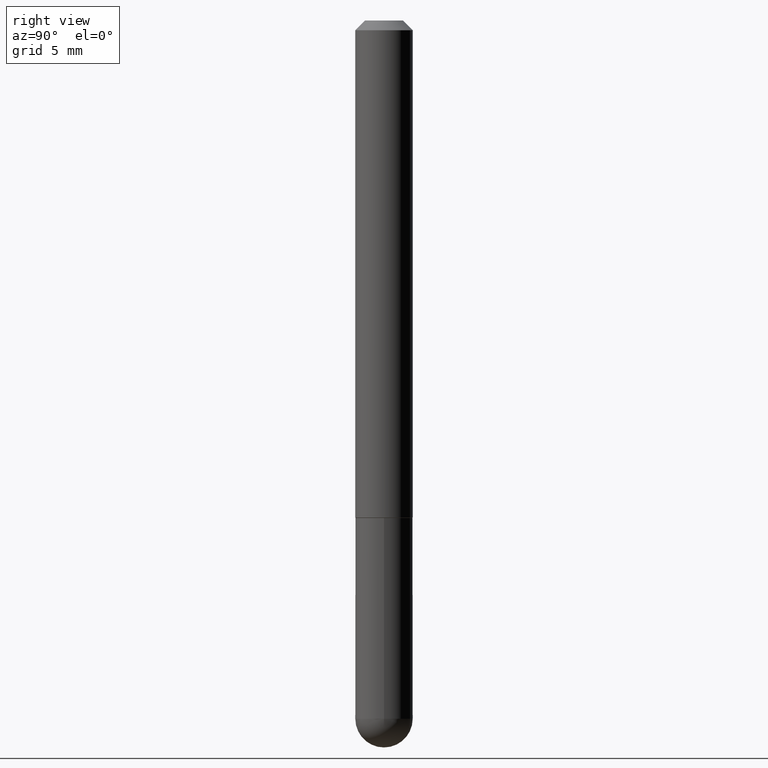
[diagram: clean part render]
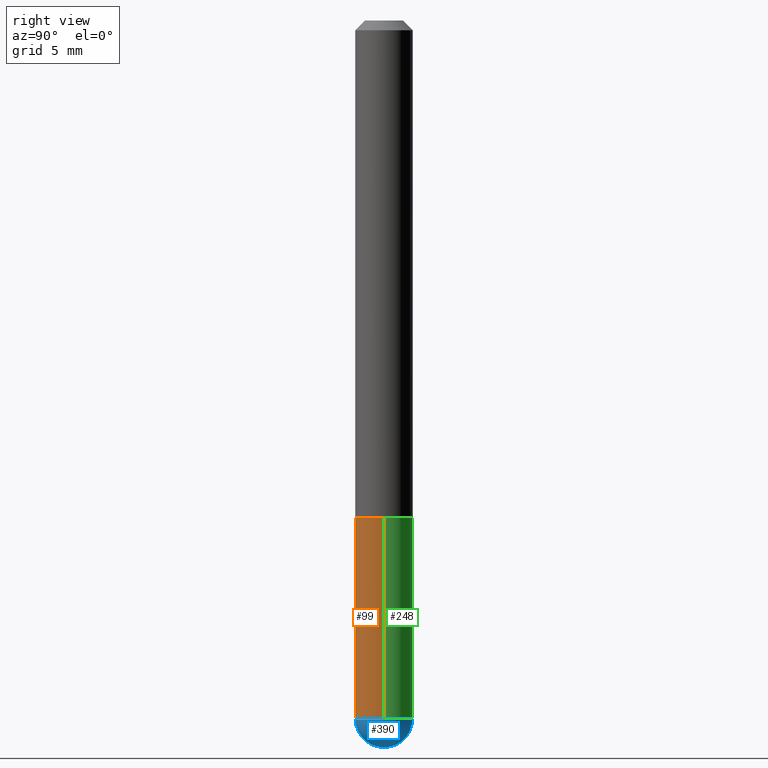
[diagram: same view with three faces highlighted in distinct colors, each labeled with its STEP entity id]
A machine part, right view with three faces highlighted in distinct colors.
Their STEP definitions:

[orange] entity #99 — the highlighted cylindrical surface (edge-blend (fillet) strip) has radius 1.4999 mm, axis along (-0, 0, 1).
#2 = EDGE_CURVE ( 'NONE', #19, #89, #170, .T. ) ;
#19 = VERTEX_POINT ( 'NONE', #186 ) ;
#21 = ORIENTED_EDGE ( 'NONE', *, *, #384, .T. ) ;
#25 = AXIS2_PLACEMENT_3D ( 'NONE', #335, #275, #320 ) ;
#26 = VECTOR ( 'NONE', #249, 39.37007874015748143 ) ;
#58 = ORIENTED_EDGE ( 'NONE', *, *, #156, .T. ) ;
#61 = DIRECTION ( 'NONE',  ( 1.000000000000000000, -6.982962677686270655E-15, 0.000000000000000000 ) ) ;
#62 = AXIS2_PLACEMENT_3D ( 'NONE', #193, #68, #61 ) ;
#66 = CYLINDRICAL_SURFACE ( 'NONE', #239, 0.05905000000000001914 ) ;
#68 = DIRECTION ( 'NONE',  ( -2.445468806185136597E-29, 3.491481338843145583E-15, 1.000000000000000000 ) ) ;
#89 = VERTEX_POINT ( 'NONE', #408 ) ;
#94 = CARTESIAN_POINT ( 'NONE',  ( 0.05905000000000001914, -4.708175298396508446E-15, -1.437049999999999939 ) ) ;
#99 = ADVANCED_FACE ( 'NONE', ( #258 ), #66, .T. ) ;
#101 = VECTOR ( 'NONE', #122, 39.37007874015748143 ) ;
#107 = CARTESIAN_POINT ( 'NONE',  ( -0.05905000000000001914, -3.876255866812795611E-15, -1.023699999999999832 ) ) ;
#118 = AXIS2_PLACEMENT_3D ( 'NONE', #207, #136, #138 ) ;
#122 = DIRECTION ( 'NONE',  ( -2.445468806185136877E-29, 3.491481338843145188E-15, 1.000000000000000000 ) ) ;
#127 = EDGE_CURVE ( 'NONE', #19, #309, #339, .T. ) ;
#136 = DIRECTION ( 'NONE',  ( -2.445468806185136597E-29, 3.491481338843145583E-15, 1.000000000000000000 ) ) ;
#138 = DIRECTION ( 'NONE',  ( 1.000000000000000000, -6.982962677686262766E-15, 0.000000000000000000 ) ) ;
#143 = ORIENTED_EDGE ( 'NONE', *, *, #2, .T. ) ;
#148 = LINE ( 'NONE', #214, #26 ) ;
#152 = DIRECTION ( 'NONE',  ( 1.000000000000000000, -6.982962677686266711E-15, 4.876176775795935793E-29 ) ) ;
#156 = EDGE_CURVE ( 'NONE', #89, #179, #272, .T. ) ;
#162 = ORIENTED_EDGE ( 'NONE', *, *, #127, .F. ) ;
#170 = CIRCLE ( 'NONE', #25, 0.05905000000000001914 ) ;
#179 = VERTEX_POINT ( 'NONE', #94 ) ;
#186 = CARTESIAN_POINT ( 'NONE',  ( -0.05905000000000001914, -3.876255866812795611E-15, -1.437049999999999939 ) ) ;
#191 = CARTESIAN_POINT ( 'NONE',  ( -0.05905000000000001914, 4.195754854663392958E-16, -2.904631170795522943E-30 ) ) ;
#193 = CARTESIAN_POINT ( 'NONE',  ( 3.514260947928350449E-29, -5.017433257984542594E-15, -1.437049999999999939 ) ) ;
#203 = VERTEX_POINT ( 'NONE', #318 ) ;
#207 = CARTESIAN_POINT ( 'NONE',  ( 2.503426416891723784E-29, -3.574229446573727613E-15, -1.023699999999999832 ) ) ;
#214 = CARTESIAN_POINT ( 'NONE',  ( 0.05905000000000001914, -4.123439461173741806E-16, 2.879382386107500921E-30 ) ) ;
#239 = AXIS2_PLACEMENT_3D ( 'NONE', #373, #252, #152 ) ;
#249 = DIRECTION ( 'NONE',  ( -2.445468806185136877E-29, 3.491481338843145188E-15, 1.000000000000000000 ) ) ;
#252 = DIRECTION ( 'NONE',  ( -2.445468806185136597E-29, 3.491481338843145583E-15, 1.000000000000000000 ) ) ;
#258 = FACE_OUTER_BOUND ( 'NONE', #333, .T. ) ;
#272 = CIRCLE ( 'NONE', #62, 0.05905000000000001914 ) ;
#275 = DIRECTION ( 'NONE',  ( -2.445468806185136597E-29, 3.491481338843145583E-15, 1.000000000000000000 ) ) ;
#294 = EDGE_CURVE ( 'NONE', #309, #203, #296, .T. ) ;
#296 = CIRCLE ( 'NONE', #118, 0.05905000000000001914 ) ;
#309 = VERTEX_POINT ( 'NONE', #107 ) ;
#318 = CARTESIAN_POINT ( 'NONE',  ( 0.05905000000000001914, -3.986573392691101744E-15, -1.023699999999999832 ) ) ;
#320 = DIRECTION ( 'NONE',  ( 1.000000000000000000, -6.982962677686270655E-15, 0.000000000000000000 ) ) ;
#333 = EDGE_LOOP ( 'NONE', ( #162, #143, #58, #21, #389 ) ) ;
#335 = CARTESIAN_POINT ( 'NONE',  ( 3.514260947928350449E-29, -5.017433257984542594E-15, -1.437049999999999939 ) ) ;
#339 = LINE ( 'NONE', #191, #101 ) ;
#373 = CARTESIAN_POINT ( 'NONE',  ( 0.000000000000000000, 0.000000000000000000, 0.000000000000000000 ) ) ;
#384 = EDGE_CURVE ( 'NONE', #179, #203, #148, .T. ) ;
#389 = ORIENTED_EDGE ( 'NONE', *, *, #294, .F. ) ;
#408 = CARTESIAN_POINT ( 'NONE',  ( -4.195754854663065087E-16, -0.05905000000000539678, -1.437049999999999716 ) ) ;

[blue] entity #390 — the highlighted spherical surface has radius 1.4999 mm.
#61 = DIRECTION ( 'NONE',  ( 1.000000000000000000, -6.982962677686270655E-15, 0.000000000000000000 ) ) ;
#62 = AXIS2_PLACEMENT_3D ( 'NONE', #193, #68, #61 ) ;
#65 = CARTESIAN_POINT ( 'NONE',  ( 3.183141170014464762E-29, -5.491615626124592102E-15, -1.437049999999999939 ) ) ;
#68 = DIRECTION ( 'NONE',  ( -2.445468806185136597E-29, 3.491481338843145583E-15, 1.000000000000000000 ) ) ;
#72 = ORIENTED_EDGE ( 'NONE', *, *, #307, .F. ) ;
#87 = DIRECTION ( 'NONE',  ( 6.982962677686266711E-15, 1.000000000000000000, 0.000000000000000000 ) ) ;
#89 = VERTEX_POINT ( 'NONE', #408 ) ;
#91 = CARTESIAN_POINT ( 'NONE',  ( 3.514260947928350449E-29, -5.017433257984542594E-15, -1.437049999999999939 ) ) ;
#94 = CARTESIAN_POINT ( 'NONE',  ( 0.05905000000000001914, -4.708175298396508446E-15, -1.437049999999999939 ) ) ;
#109 = EDGE_LOOP ( 'NONE', ( #72, #360, #139, #251 ) ) ;
#115 = DIRECTION ( 'NONE',  ( 6.982962677686265922E-15, 1.000000000000000000, -4.626330217890349615E-15 ) ) ;
#121 = FACE_OUTER_BOUND ( 'NONE', #109, .T. ) ;
#139 = ORIENTED_EDGE ( 'NONE', *, *, #407, .F. ) ;
#140 = CARTESIAN_POINT ( 'NONE',  ( 3.330070981488499955E-29, -5.694171829508798064E-15, -1.496100000000000207 ) ) ;
#146 = SPHERICAL_SURFACE ( 'NONE', #376, 0.05905000000000025506 ) ;
#151 = DIRECTION ( 'NONE',  ( 1.000000000000000000, -6.982962677686270655E-15, 0.000000000000000000 ) ) ;
#156 = EDGE_CURVE ( 'NONE', #89, #179, #272, .T. ) ;
#161 = DIRECTION ( 'NONE',  ( -1.000000000000000000, 7.105427357601001070E-15, -4.926315508542082329E-29 ) ) ;
#179 = VERTEX_POINT ( 'NONE', #94 ) ;
#193 = CARTESIAN_POINT ( 'NONE',  ( 3.514260947928350449E-29, -5.017433257984542594E-15, -1.437049999999999939 ) ) ;
#197 = CIRCLE ( 'NONE', #273, 0.05905000000000001914 ) ;
#238 = VERTEX_POINT ( 'NONE', #263 ) ;
#251 = ORIENTED_EDGE ( 'NONE', *, *, #156, .F. ) ;
#263 = CARTESIAN_POINT ( 'NONE',  ( 4.123439461174084467E-16, 0.05904999999999487742, -1.437050000000000161 ) ) ;
#272 = CIRCLE ( 'NONE', #62, 0.05905000000000001914 ) ;
#273 = AXIS2_PLACEMENT_3D ( 'NONE', #91, #404, #151 ) ;
#279 = DIRECTION ( 'NONE',  ( -1.000000000000000000, 6.982962677686265922E-15, -4.883557194083112340E-29 ) ) ;
#281 = CIRCLE ( 'NONE', #334, 0.05905000000000025506 ) ;
#301 = DIRECTION ( 'NONE',  ( -7.105427357601001070E-15, -1.000000000000000000, 0.000000000000000000 ) ) ;
#302 = VERTEX_POINT ( 'NONE', #140 ) ;
#305 = AXIS2_PLACEMENT_3D ( 'NONE', #394, #161, #301 ) ;
#306 = DIRECTION ( 'NONE',  ( 1.000000000000000000, -6.982962677686265922E-15, 4.883557194083112340E-29 ) ) ;
#307 = EDGE_CURVE ( 'NONE', #302, #89, #348, .T. ) ;
#334 = AXIS2_PLACEMENT_3D ( 'NONE', #402, #306, #87 ) ;
#348 = CIRCLE ( 'NONE', #305, 0.05905000000000025506 ) ;
#360 = ORIENTED_EDGE ( 'NONE', *, *, #396, .T. ) ;
#376 = AXIS2_PLACEMENT_3D ( 'NONE', #65, #279, #115 ) ;
#390 = ADVANCED_FACE ( 'NONE', ( #121 ), #146, .T. ) ;
#394 = CARTESIAN_POINT ( 'NONE',  ( 3.183141170014464762E-29, -5.491615626124592102E-15, -1.437049999999999939 ) ) ;
#396 = EDGE_CURVE ( 'NONE', #302, #238, #281, .T. ) ;
#402 = CARTESIAN_POINT ( 'NONE',  ( 3.183141170014464762E-29, -5.491615626124592102E-15, -1.437049999999999939 ) ) ;
#404 = DIRECTION ( 'NONE',  ( -2.445468806185136597E-29, 3.491481338843145583E-15, 1.000000000000000000 ) ) ;
#407 = EDGE_CURVE ( 'NONE', #179, #238, #197, .T. ) ;
#408 = CARTESIAN_POINT ( 'NONE',  ( -4.195754854663065087E-16, -0.05905000000000539678, -1.437049999999999716 ) ) ;

[green] entity #248 — the highlighted cylindrical surface (edge-blend (fillet) strip) has radius 1.4999 mm, axis along (-0, 0, 1).
#9 = CARTESIAN_POINT ( 'NONE',  ( 0.000000000000000000, 0.000000000000000000, 0.000000000000000000 ) ) ;
#13 = ORIENTED_EDGE ( 'NONE', *, *, #384, .F. ) ;
#19 = VERTEX_POINT ( 'NONE', #186 ) ;
#26 = VECTOR ( 'NONE', #249, 39.37007874015748143 ) ;
#31 = CARTESIAN_POINT ( 'NONE',  ( 3.514260947928350449E-29, -5.017433257984542594E-15, -1.437049999999999939 ) ) ;
#54 = AXIS2_PLACEMENT_3D ( 'NONE', #31, #289, #126 ) ;
#73 = CIRCLE ( 'NONE', #54, 0.05905000000000001914 ) ;
#81 = EDGE_LOOP ( 'NONE', ( #145, #182, #400, #13, #328 ) ) ;
#91 = CARTESIAN_POINT ( 'NONE',  ( 3.514260947928350449E-29, -5.017433257984542594E-15, -1.437049999999999939 ) ) ;
#94 = CARTESIAN_POINT ( 'NONE',  ( 0.05905000000000001914, -4.708175298396508446E-15, -1.437049999999999939 ) ) ;
#101 = VECTOR ( 'NONE', #122, 39.37007874015748143 ) ;
#104 = AXIS2_PLACEMENT_3D ( 'NONE', #326, #241, #358 ) ;
#105 = DIRECTION ( 'NONE',  ( 1.000000000000000000, -6.982962677686266711E-15, 4.876176775795935793E-29 ) ) ;
#107 = CARTESIAN_POINT ( 'NONE',  ( -0.05905000000000001914, -3.876255866812795611E-15, -1.023699999999999832 ) ) ;
#122 = DIRECTION ( 'NONE',  ( -2.445468806185136877E-29, 3.491481338843145188E-15, 1.000000000000000000 ) ) ;
#126 = DIRECTION ( 'NONE',  ( 1.000000000000000000, -6.982962677686270655E-15, 0.000000000000000000 ) ) ;
#127 = EDGE_CURVE ( 'NONE', #19, #309, #339, .T. ) ;
#145 = ORIENTED_EDGE ( 'NONE', *, *, #210, .T. ) ;
#148 = LINE ( 'NONE', #214, #26 ) ;
#151 = DIRECTION ( 'NONE',  ( 1.000000000000000000, -6.982962677686270655E-15, 0.000000000000000000 ) ) ;
#165 = CIRCLE ( 'NONE', #104, 0.05905000000000001914 ) ;
#179 = VERTEX_POINT ( 'NONE', #94 ) ;
#180 = AXIS2_PLACEMENT_3D ( 'NONE', #9, #230, #105 ) ;
#182 = ORIENTED_EDGE ( 'NONE', *, *, #127, .T. ) ;
#186 = CARTESIAN_POINT ( 'NONE',  ( -0.05905000000000001914, -3.876255866812795611E-15, -1.437049999999999939 ) ) ;
#191 = CARTESIAN_POINT ( 'NONE',  ( -0.05905000000000001914, 4.195754854663392958E-16, -2.904631170795522943E-30 ) ) ;
#197 = CIRCLE ( 'NONE', #273, 0.05905000000000001914 ) ;
#203 = VERTEX_POINT ( 'NONE', #318 ) ;
#210 = EDGE_CURVE ( 'NONE', #238, #19, #73, .T. ) ;
#214 = CARTESIAN_POINT ( 'NONE',  ( 0.05905000000000001914, -4.123439461173741806E-16, 2.879382386107500921E-30 ) ) ;
#225 = EDGE_CURVE ( 'NONE', #203, #309, #165, .T. ) ;
#230 = DIRECTION ( 'NONE',  ( -2.445468806185136597E-29, 3.491481338843145583E-15, 1.000000000000000000 ) ) ;
#237 = FACE_OUTER_BOUND ( 'NONE', #81, .T. ) ;
#238 = VERTEX_POINT ( 'NONE', #263 ) ;
#241 = DIRECTION ( 'NONE',  ( -2.445468806185136597E-29, 3.491481338843145583E-15, 1.000000000000000000 ) ) ;
#248 = ADVANCED_FACE ( 'NONE', ( #237 ), #356, .T. ) ;
#249 = DIRECTION ( 'NONE',  ( -2.445468806185136877E-29, 3.491481338843145188E-15, 1.000000000000000000 ) ) ;
#263 = CARTESIAN_POINT ( 'NONE',  ( 4.123439461174084467E-16, 0.05904999999999487742, -1.437050000000000161 ) ) ;
#273 = AXIS2_PLACEMENT_3D ( 'NONE', #91, #404, #151 ) ;
#289 = DIRECTION ( 'NONE',  ( -2.445468806185136597E-29, 3.491481338843145583E-15, 1.000000000000000000 ) ) ;
#309 = VERTEX_POINT ( 'NONE', #107 ) ;
#318 = CARTESIAN_POINT ( 'NONE',  ( 0.05905000000000001914, -3.986573392691101744E-15, -1.023699999999999832 ) ) ;
#326 = CARTESIAN_POINT ( 'NONE',  ( 2.503426416891723784E-29, -3.574229446573727613E-15, -1.023699999999999832 ) ) ;
#328 = ORIENTED_EDGE ( 'NONE', *, *, #407, .T. ) ;
#339 = LINE ( 'NONE', #191, #101 ) ;
#356 = CYLINDRICAL_SURFACE ( 'NONE', #180, 0.05905000000000001914 ) ;
#358 = DIRECTION ( 'NONE',  ( 1.000000000000000000, -6.982962677686262766E-15, 0.000000000000000000 ) ) ;
#384 = EDGE_CURVE ( 'NONE', #179, #203, #148, .T. ) ;
#400 = ORIENTED_EDGE ( 'NONE', *, *, #225, .F. ) ;
#404 = DIRECTION ( 'NONE',  ( -2.445468806185136597E-29, 3.491481338843145583E-15, 1.000000000000000000 ) ) ;
#407 = EDGE_CURVE ( 'NONE', #179, #238, #197, .T. ) ;